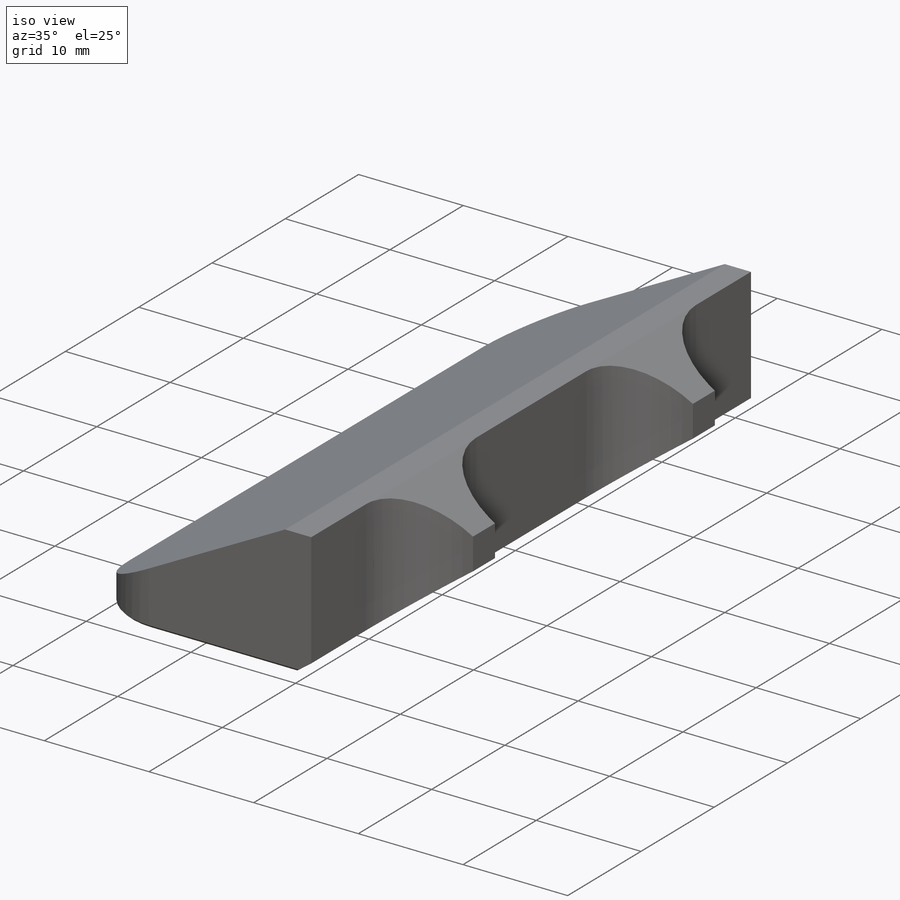
[diagram: iso view]
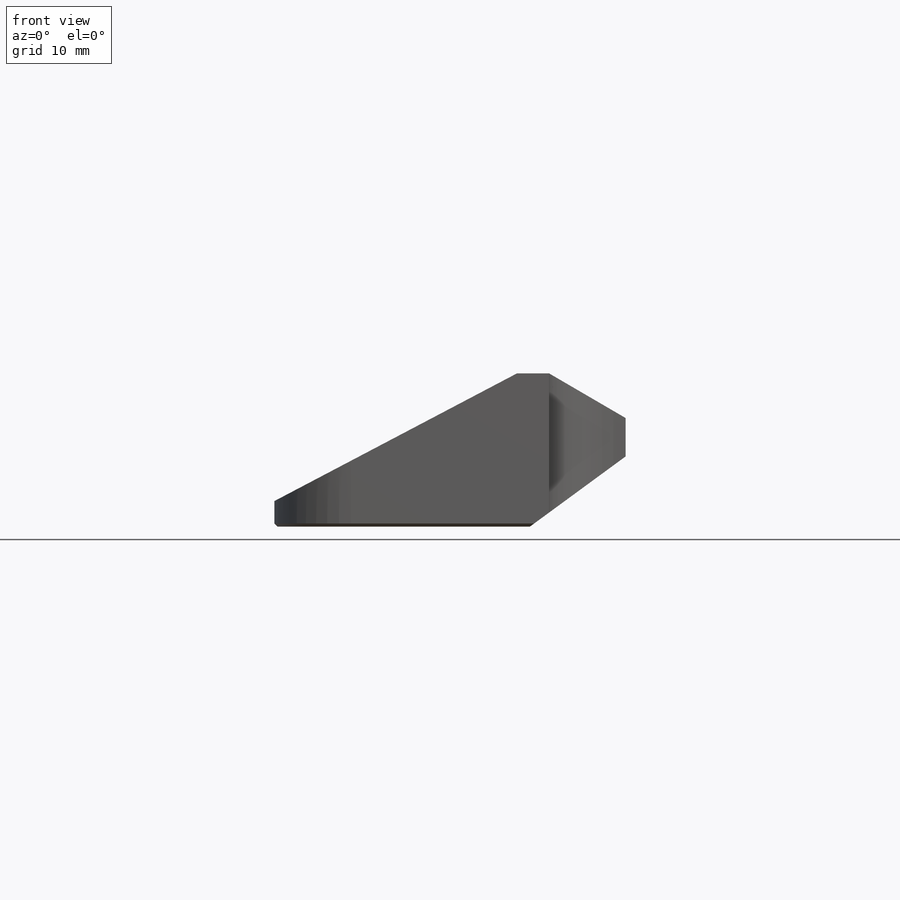
[diagram: front view]
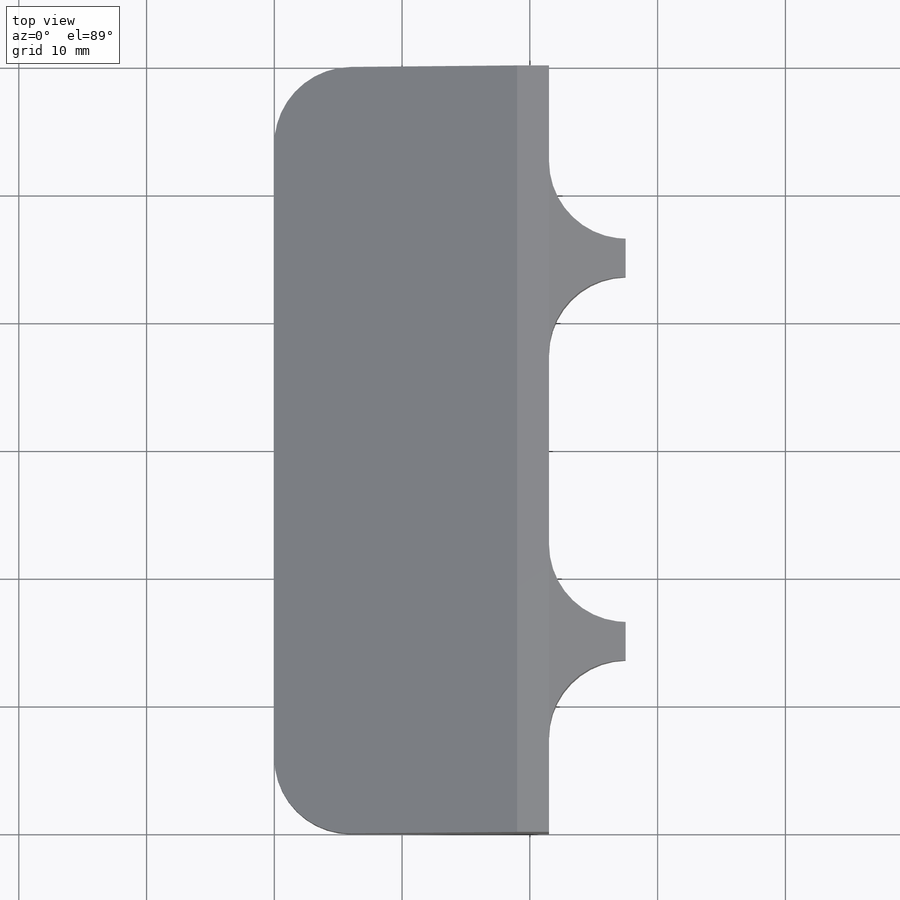
[diagram: top view]
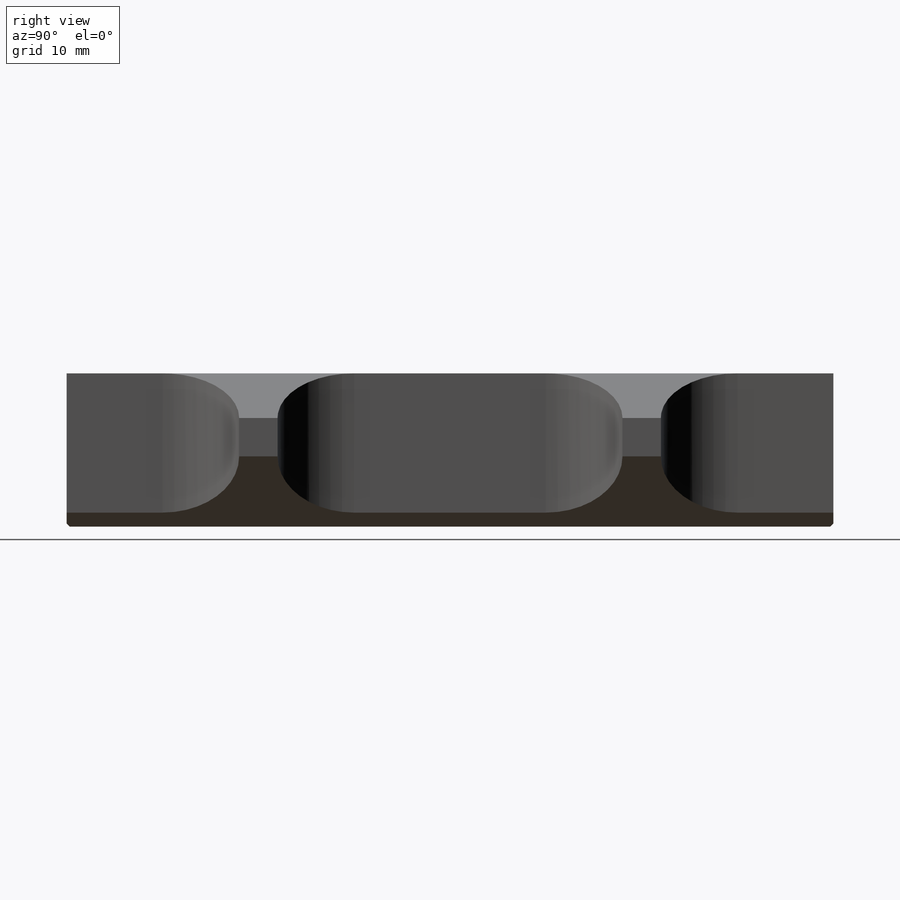
[diagram: right view]
SOLIDWORKS PART (.sldprt)
format: sldprt  version: not decoded by parser v0  size: 461,824 bytes
history: native  units: mm
features: fillet x3, sketch x2, material x1, extrude x1, cut_extrude x1, chamfer x1 (+15 scaffold rows collapsed)
feature tree (24):
  scaffold x15  (default folders/planes/origin — collapsed)
  material  "Fused silica"
  sketch  "Sketch1"  dims[c1.D1=20.0mm c1.D2=2.0mm c1.D3=6.5mm c1.D4=3.0mm c1.D5=7.5mm c1.D6=6.0mm c2.D3=12.0mm c2.D7=~3.935826mm c2.D6=6.0mm c3.D7=2.5mm c3.D8=5.5mm c3.D9=2.5mm c4.D9=~27.758541deg c4.D10=~6.946222mm c5.D10=~30.256437deg c5.D11=24.0mm c6.D11=~36.253838deg]
  extrude  "Extrude1"  Depth=60mm
  sketch  "Sketch2"  dims[c1.D2=~5.403151mm c1.D1=3.0mm c2.D2=7.0mm c2.D3=30.0mm c2.D4=1.0mm]
  cut_extrude  "Cut-Extrude1"  [1 undecoded]
  fillet  "Fillet1"  Radius=6mm
  chamfer  "Chamfer1"  Distance=0.25mm Angle=45deg
  fillet  "Fillet2"  Radius=0.5mm
  fillet  "Fillet3"  Radius=0.2mm
decode coverage: 7 of 8 modeling features carry decoded parameters
note: ~ marks probable driven/reference dimensions
note: 1 parameter value undecoded
note: suppression state not decoded; provenance and decode notes live in map.json
